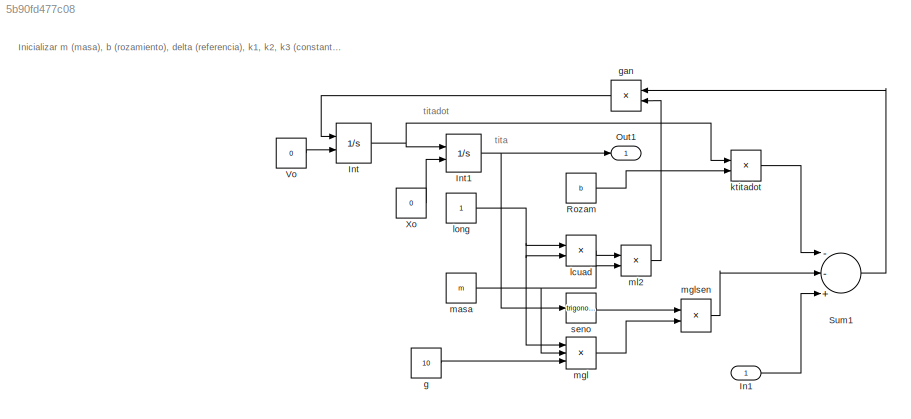
MODEL slx_5b90fd477c08
KIND model
BLOCK [Inport] In1
  IconDisplay = Port number
BLOCK [Integrator] Int
  InitialCondition = -10
  InitialConditionSource = external
  Ports = [2, 1]
BLOCK [Integrator] Int1
  InitialCondition = 2.5
  InitialConditionSource = external
  Ports = [2, 1]
BLOCK [Outport] Out1
  IconDisplay = Port number
BLOCK [Constant] Rozam
  Value = b
BLOCK [Sum] Sum1
  Inputs = --+
  Ports = [3, 1]
BLOCK [Constant] Vo
  Value = 0
BLOCK [Constant] Xo
  Value = 0
BLOCK [Constant] g
  Value = 10
BLOCK [Product] gan
  InputSameDT = off
  Inputs = */
  OutDataTypeStr = Inherit: Inherit via internal rule
  Ports = [2, 1]
  RndMeth = Floor
  SaturateOnIntegerOverflow = off
BLOCK [Product] ktitadot
  InputSameDT = off
  OutDataTypeStr = Inherit: Inherit via internal rule
  Ports = [2, 1]
  SaturateOnIntegerOverflow = off
BLOCK [Product] lcuad
  InputSameDT = off
  OutDataTypeStr = Inherit: Inherit via internal rule
  Ports = [2, 1]
  SaturateOnIntegerOverflow = off
BLOCK [Constant] long
BLOCK [Constant] masa
  Value = m
BLOCK [Product] mgl
  InputSameDT = off
  Inputs = 3
  OutDataTypeStr = Inherit: Inherit via internal rule
  Ports = [3, 1]
  SaturateOnIntegerOverflow = off
BLOCK [Product] mglsen
  InputSameDT = off
  OutDataTypeStr = Inherit: Inherit via internal rule
  Ports = [2, 1]
  SaturateOnIntegerOverflow = off
BLOCK [Product] ml2
  InputSameDT = off
  OutDataTypeStr = Inherit: Inherit via internal rule
  Ports = [2, 1]
  SaturateOnIntegerOverflow = off
BLOCK [Trigonometry] seno
  Ports = [1, 1]
ANNOTATION (root): Inicializar m (masa), b (rozamiento), delta (referencia), k1, k2, k3 (constantes de diseño)
ANNOTATION (root): tita
ANNOTATION (root): titadot
LINE In1:1 -> Sum1:3
NET Int1:1 -> Out1:1, seno:1
NET Int:1 -> Int1:1, ktitadot:1
LINE Rozam:1 -> ktitadot:2
LINE Sum1:1 -> gan:1
LINE Vo:1 -> Int:2
LINE Xo:1 -> Int1:2
LINE g:1 -> mgl:3
LINE gan:1 -> Int:1
LINE ktitadot:1 -> Sum1:1
LINE lcuad:1 -> ml2:1
NET long:1 -> lcuad:1, lcuad:2, mgl:1
NET masa:1 -> mgl:2, ml2:2
LINE mgl:1 -> mglsen:2
LINE mglsen:1 -> Sum1:2
LINE ml2:1 -> gan:2
LINE seno:1 -> mglsen:1
note: NET lines group one-source signal fan-out (src -> all destinations, sorted); 1:1 wires keep LINE
